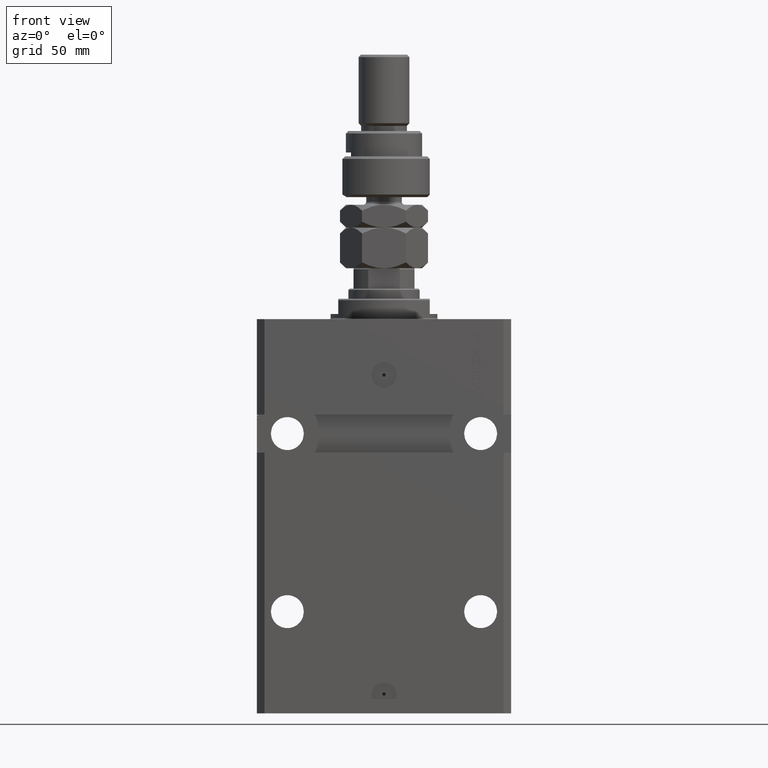
[diagram: clean part render]
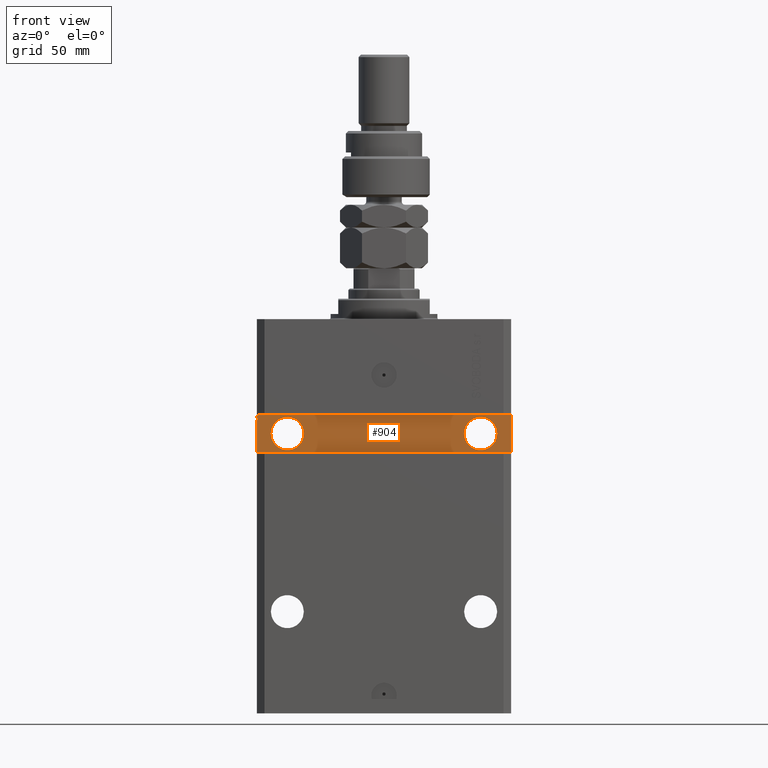
[diagram: same view with one face highlighted and labeled with its STEP entity id]
A machine part, front view. The second image highlights one B-rep face of the part: STEP entity #904.
In plain terms, the highlighted planar face has unit normal (0, -1, 0).
Its self-contained STEP definition (entity closure, byte-faithful):
#540 = CIRCLE ( 'NONE', #13176, 6.499999999999999112 ) ;
#898 = CARTESIAN_POINT ( 'NONE',  ( -50.00000000000002842, -32.50000000000000711, -37.50000000000000711 ) ) ;
#904 = ADVANCED_FACE ( 'NONE', ( #45043, #11266, #41608 ), #37177, .T. ) ;
#971 = VECTOR ( 'NONE', #40901, 1000.000000000000000 ) ;
#1459 = CARTESIAN_POINT ( 'NONE',  ( -49.50000000000000711, -32.50000000000000711, -37.99999999999999289 ) ) ;
#3029 = VECTOR ( 'NONE', #43536, 1000.000000000000000 ) ;
#3335 = VERTEX_POINT ( 'NONE', #21207 ) ;
#3345 = DIRECTION ( 'NONE',  ( 1.000000000000000000, 1.387778780781445182E-16, 0.000000000000000000 ) ) ;
#3451 = VERTEX_POINT ( 'NONE', #17996 ) ;
#3892 = VERTEX_POINT ( 'NONE', #9736 ) ;
#3948 = ORIENTED_EDGE ( 'NONE', *, *, #29373, .F. ) ;
#4458 = DIRECTION ( 'NONE',  ( 1.000000000000000000, 0.000000000000000000, 0.000000000000000000 ) ) ;
#4595 = ORIENTED_EDGE ( 'NONE', *, *, #37744, .T. ) ;
#4693 = DIRECTION ( 'NONE',  ( 8.806446732139696505E-17, -1.000000000000000000, 6.162975822039154730E-33 ) ) ;
#4925 = VECTOR ( 'NONE', #8711, 1000.000000000000000 ) ;
#5724 = LINE ( 'NONE', #38579, #4925 ) ;
#5742 = EDGE_CURVE ( 'NONE', #18733, #48287, #41147, .T. ) ;
#6632 = EDGE_CURVE ( 'NONE', #12975, #25310, #37028, .T. ) ;
#6692 = CARTESIAN_POINT ( 'NONE',  ( -50.00000000000002842, -32.50000000000000711, -38.87066340383893959 ) ) ;
#7278 = DIRECTION ( 'NONE',  ( 8.806446732139696505E-17, -1.000000000000000000, 6.162975822039154730E-33 ) ) ;
#7322 = CARTESIAN_POINT ( 'NONE',  ( 49.99999999999999289, -32.49999999999999289, -37.49999999999999289 ) ) ;
#7445 = DIRECTION ( 'NONE',  ( -1.000000000000000000, -0.000000000000000000, -0.000000000000000000 ) ) ;
#8711 = DIRECTION ( 'NONE',  ( -1.000000000000000000, -0.000000000000000000, -0.000000000000000000 ) ) ;
#9479 = EDGE_CURVE ( 'NONE', #30763, #23940, #13698, .T. ) ;
#9736 = CARTESIAN_POINT ( 'NONE',  ( -50.00000000000002842, -32.50000000000000711, -37.62144886363636687 ) ) ;
#11129 = CARTESIAN_POINT ( 'NONE',  ( -50.00000000000002842, -32.50000000000000711, -37.99999999999999289 ) ) ;
#11266 = FACE_BOUND ( 'NONE', #33416, .T. ) ;
#11721 = AXIS2_PLACEMENT_3D ( 'NONE', #23478, #4693, #4458 ) ;
#12017 = CARTESIAN_POINT ( 'NONE',  ( -49.50000000000001421, -32.50000000000000711, -39.43474002179300442 ) ) ;
#12709 = DIRECTION ( 'NONE',  ( 0.000000000000000000, 0.000000000000000000, 1.000000000000000000 ) ) ;
#12975 = VERTEX_POINT ( 'NONE', #16608 ) ;
#13176 = AXIS2_PLACEMENT_3D ( 'NONE', #32716, #7278, #48734 ) ;
#13457 = CARTESIAN_POINT ( 'NONE',  ( -49.50000000000000711, -32.49999999999999289, -37.62144886363635976 ) ) ;
#13698 = CIRCLE ( 'NONE', #47563, 6.499999999999999112 ) ;
#13771 = DIRECTION ( 'NONE',  ( 0.000000000000000000, 0.000000000000000000, -1.000000000000000000 ) ) ;
#14971 = CARTESIAN_POINT ( 'NONE',  ( 4.616128571667024604E-15, -32.50000000000000000, 0.000000000000000000 ) ) ;
#15042 = ORIENTED_EDGE ( 'NONE', *, *, #9479, .F. ) ;
#15490 = DIRECTION ( 'NONE',  ( 1.000000000000000000, 0.000000000000000000, 0.000000000000000000 ) ) ;
#15615 = CIRCLE ( 'NONE', #17150, 6.499999999999999112 ) ;
#15803 = ORIENTED_EDGE ( 'NONE', *, *, #19782, .T. ) ;
#15981 = DIRECTION ( 'NONE',  ( 0.000000000000000000, 0.000000000000000000, -1.000000000000000000 ) ) ;
#16574 = VECTOR ( 'NONE', #13771, 1000.000000000000000 ) ;
#16608 = CARTESIAN_POINT ( 'NONE',  ( -49.49999999999999289, -32.50000000000000711, -39.43474004052496440 ) ) ;
#17053 = CARTESIAN_POINT ( 'NONE',  ( 49.99999999999999289, -32.49999999999999289, -37.49999999999999289 ) ) ;
#17150 = AXIS2_PLACEMENT_3D ( 'NONE', #41002, #33119, #48141 ) ;
#17774 = CARTESIAN_POINT ( 'NONE',  ( 31.50000000000001421, -32.50000000000000000, -45.00000000000000000 ) ) ;
#17799 = ORIENTED_EDGE ( 'NONE', *, *, #43808, .T. ) ;
#17996 = CARTESIAN_POINT ( 'NONE',  ( -49.50000000000000711, -32.50000000000000711, -37.62144886363635976 ) ) ;
#18138 = CARTESIAN_POINT ( 'NONE',  ( -44.49999999999998579, -32.50000000000000711, -45.00000000000000711 ) ) ;
#18174 = DIRECTION ( 'NONE',  ( 1.387778780781445182E-16, -1.000000000000000000, 0.000000000000000000 ) ) ;
#18324 = DIRECTION ( 'NONE',  ( 1.000000000000000000, 0.000000000000000000, 0.000000000000000000 ) ) ;
#18733 = VERTEX_POINT ( 'NONE', #17053 ) ;
#18790 = VERTEX_POINT ( 'NONE', #17774 ) ;
#19782 = EDGE_CURVE ( 'NONE', #29664, #3335, #31870, .T. ) ;
#20102 = CARTESIAN_POINT ( 'NONE',  ( -49.50000000000001421, -32.50000000000001421, -38.87066340383893959 ) ) ;
#20398 = EDGE_CURVE ( 'NONE', #18790, #41108, #540, .T. ) ;
#20427 = DIRECTION ( 'NONE',  ( 0.000000000000000000, 0.000000000000000000, -1.000000000000000000 ) ) ;
#20654 = EDGE_CURVE ( 'NONE', #25310, #28184, #35877, .T. ) ;
#20655 = EDGE_LOOP ( 'NONE', ( #3948, #26529 ) ) ;
#21207 = CARTESIAN_POINT ( 'NONE',  ( 49.99999999999999289, -32.49999999999999289, -52.49999999999998579 ) ) ;
#21414 = CARTESIAN_POINT ( 'NONE',  ( -50.00000000000002842, -32.50000000000000711, -37.50000000000000711 ) ) ;
#21426 = VERTEX_POINT ( 'NONE', #1459 ) ;
#22055 = EDGE_CURVE ( 'NONE', #23940, #30763, #15615, .T. ) ;
#23478 = CARTESIAN_POINT ( 'NONE',  ( 38.00000000000001421, -32.50000000000000000, -45.00000000000000000 ) ) ;
#23672 = VERTEX_POINT ( 'NONE', #41865 ) ;
#23940 = VERTEX_POINT ( 'NONE', #18138 ) ;
#23980 = ORIENTED_EDGE ( 'NONE', *, *, #31534, .T. ) ;
#23993 = EDGE_CURVE ( 'NONE', #3451, #21426, #28760, .T. ) ;
#24297 = VECTOR ( 'NONE', #20427, 1000.000000000000000 ) ;
#24594 = VECTOR ( 'NONE', #7445, 1000.000000000000000 ) ;
#25289 = CARTESIAN_POINT ( 'NONE',  ( -50.00000000000002842, -32.50000000000000711, -52.50000000000000000 ) ) ;
#25310 = VERTEX_POINT ( 'NONE', #27448 ) ;
#26342 = VECTOR ( 'NONE', #15981, 1000.000000000000000 ) ;
#26529 = ORIENTED_EDGE ( 'NONE', *, *, #20398, .F. ) ;
#27448 = CARTESIAN_POINT ( 'NONE',  ( -49.49999999999977973, -32.50000000000000711, -38.87066337907741342 ) ) ;
#27506 = EDGE_CURVE ( 'NONE', #23672, #29664, #31786, .T. ) ;
#28184 = VERTEX_POINT ( 'NONE', #6692 ) ;
#28760 = LINE ( 'NONE', #13457, #3029 ) ;
#29079 = LINE ( 'NONE', #21414, #16574 ) ;
#29125 = CARTESIAN_POINT ( 'NONE',  ( 44.50000000000001421, -32.50000000000000000, -45.00000000000000000 ) ) ;
#29373 = EDGE_CURVE ( 'NONE', #41108, #18790, #32997, .T. ) ;
#29388 = DIRECTION ( 'NONE',  ( 3.791485858024926499E-13, 5.261743621399924533E-29, 1.000000000000000000 ) ) ;
#29639 = CARTESIAN_POINT ( 'NONE',  ( -49.50000000000016342, -32.50000000000000711, -39.86910993535713743 ) ) ;
#29664 = VERTEX_POINT ( 'NONE', #25289 ) ;
#29713 = ORIENTED_EDGE ( 'NONE', *, *, #20654, .F. ) ;
#29993 = VECTOR ( 'NONE', #15490, 1000.000000000000000 ) ;
#30763 = VERTEX_POINT ( 'NONE', #43254 ) ;
#31478 = LINE ( 'NONE', #31716, #33206 ) ;
#31534 = EDGE_CURVE ( 'NONE', #33799, #28184, #29079, .T. ) ;
#31716 = CARTESIAN_POINT ( 'NONE',  ( 49.99999999999999289, -32.49999999999999289, -52.49999999999998579 ) ) ;
#31786 = LINE ( 'NONE', #39174, #24297 ) ;
#31870 = LINE ( 'NONE', #47373, #47031 ) ;
#32078 = EDGE_CURVE ( 'NONE', #23672, #12975, #48787, .T. ) ;
#32716 = CARTESIAN_POINT ( 'NONE',  ( 38.00000000000001421, -32.50000000000000000, -45.00000000000000000 ) ) ;
#32997 = CIRCLE ( 'NONE', #11721, 6.499999999999999112 ) ;
#33119 = DIRECTION ( 'NONE',  ( 1.101411730780568590E-16, -1.000000000000000000, 0.000000000000000000 ) ) ;
#33206 = VECTOR ( 'NONE', #12709, 1000.000000000000000 ) ;
#33416 = EDGE_LOOP ( 'NONE', ( #15042, #46348 ) ) ;
#33799 = VERTEX_POINT ( 'NONE', #11129 ) ;
#35649 = VECTOR ( 'NONE', #29388, 1000.000000000000000 ) ;
#35877 = LINE ( 'NONE', #20102, #43891 ) ;
#36691 = ORIENTED_EDGE ( 'NONE', *, *, #5742, .T. ) ;
#37028 = LINE ( 'NONE', #29639, #35649 ) ;
#37075 = DIRECTION ( 'NONE',  ( 1.101411730780568590E-16, -1.000000000000000000, 0.000000000000000000 ) ) ;
#37157 = ORIENTED_EDGE ( 'NONE', *, *, #27506, .T. ) ;
#37177 = PLANE ( 'NONE',  #46622 ) ;
#37744 = EDGE_CURVE ( 'NONE', #3335, #18733, #31478, .T. ) ;
#38003 = ORIENTED_EDGE ( 'NONE', *, *, #32078, .F. ) ;
#38558 = EDGE_LOOP ( 'NONE', ( #23980, #29713, #38910, #38003, #37157, #15803, #4595, #36691, #17799, #40550, #40929, #39317 ) ) ;
#38579 = CARTESIAN_POINT ( 'NONE',  ( -49.50000000000000711, -32.49999999999999289, -37.99999999999999289 ) ) ;
#38907 = LINE ( 'NONE', #898, #26342 ) ;
#38910 = ORIENTED_EDGE ( 'NONE', *, *, #6632, .F. ) ;
#39084 = DIRECTION ( 'NONE',  ( -1.000000000000000000, -0.000000000000000000, -0.000000000000000000 ) ) ;
#39174 = CARTESIAN_POINT ( 'NONE',  ( -50.00000000000002842, -32.50000000000000711, -37.50000000000000711 ) ) ;
#39317 = ORIENTED_EDGE ( 'NONE', *, *, #40703, .T. ) ;
#39805 = EDGE_CURVE ( 'NONE', #3451, #3892, #44457, .T. ) ;
#40003 = CARTESIAN_POINT ( 'NONE',  ( -50.00000000000002842, -32.50000000000000711, -37.50000000000000711 ) ) ;
#40550 = ORIENTED_EDGE ( 'NONE', *, *, #39805, .F. ) ;
#40703 = EDGE_CURVE ( 'NONE', #21426, #33799, #5724, .T. ) ;
#40770 = CARTESIAN_POINT ( 'NONE',  ( -37.99999999999998579, -32.50000000000000711, -45.00000000000000711 ) ) ;
#40901 = DIRECTION ( 'NONE',  ( -1.000000000000000000, -1.387778780781445182E-16, -1.387778780781445182E-16 ) ) ;
#40929 = ORIENTED_EDGE ( 'NONE', *, *, #23993, .T. ) ;
#41002 = CARTESIAN_POINT ( 'NONE',  ( -37.99999999999998579, -32.50000000000000711, -45.00000000000000711 ) ) ;
#41108 = VERTEX_POINT ( 'NONE', #29125 ) ;
#41147 = LINE ( 'NONE', #7322, #971 ) ;
#41274 = CARTESIAN_POINT ( 'NONE',  ( -49.50000000000000711, -32.49999999999999289, -37.62144886363635976 ) ) ;
#41608 = FACE_OUTER_BOUND ( 'NONE', #38558, .T. ) ;
#41865 = CARTESIAN_POINT ( 'NONE',  ( -50.00000000000002842, -32.50000000000000711, -39.43474002179300442 ) ) ;
#43254 = CARTESIAN_POINT ( 'NONE',  ( -31.49999999999998579, -32.50000000000000711, -45.00000000000000711 ) ) ;
#43536 = DIRECTION ( 'NONE',  ( 0.000000000000000000, 0.000000000000000000, -1.000000000000000000 ) ) ;
#43808 = EDGE_CURVE ( 'NONE', #48287, #3892, #38907, .T. ) ;
#43891 = VECTOR ( 'NONE', #39084, 1000.000000000000000 ) ;
#44457 = LINE ( 'NONE', #41274, #24594 ) ;
#45043 = FACE_BOUND ( 'NONE', #20655, .T. ) ;
#46348 = ORIENTED_EDGE ( 'NONE', *, *, #22055, .F. ) ;
#46622 = AXIS2_PLACEMENT_3D ( 'NONE', #14971, #18174, #3345 ) ;
#47031 = VECTOR ( 'NONE', #47862, 1000.000000000000000 ) ;
#47373 = CARTESIAN_POINT ( 'NONE',  ( -50.00000000000002842, -32.50000000000000711, -52.50000000000000000 ) ) ;
#47563 = AXIS2_PLACEMENT_3D ( 'NONE', #40770, #37075, #18324 ) ;
#47862 = DIRECTION ( 'NONE',  ( 1.000000000000000000, 1.387778780781445182E-16, 1.387778780781445182E-16 ) ) ;
#48141 = DIRECTION ( 'NONE',  ( 1.000000000000000000, 0.000000000000000000, 0.000000000000000000 ) ) ;
#48287 = VERTEX_POINT ( 'NONE', #40003 ) ;
#48734 = DIRECTION ( 'NONE',  ( 1.000000000000000000, 0.000000000000000000, 0.000000000000000000 ) ) ;
#48787 = LINE ( 'NONE', #12017, #29993 ) ;